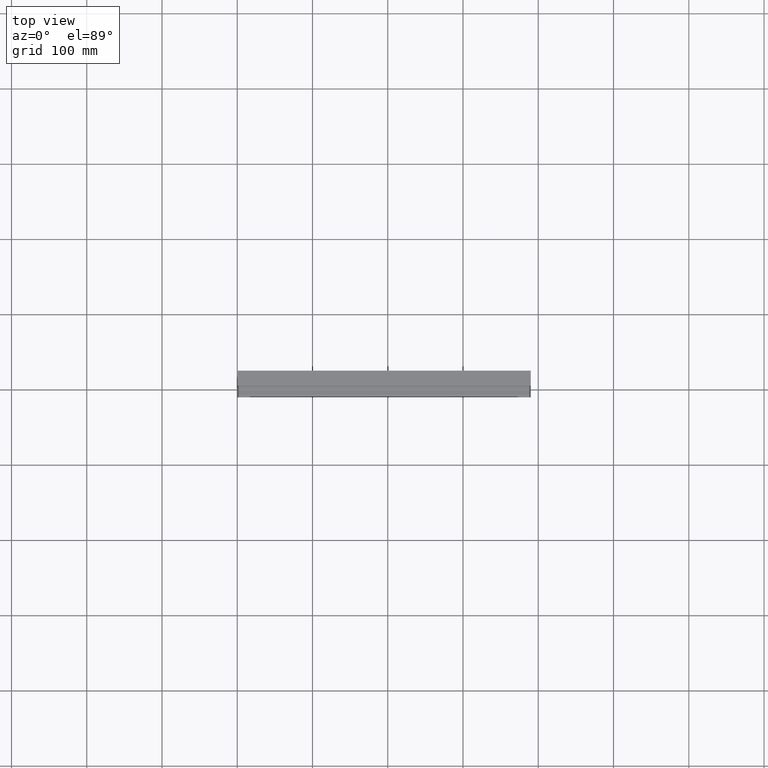
[diagram: clean part render]
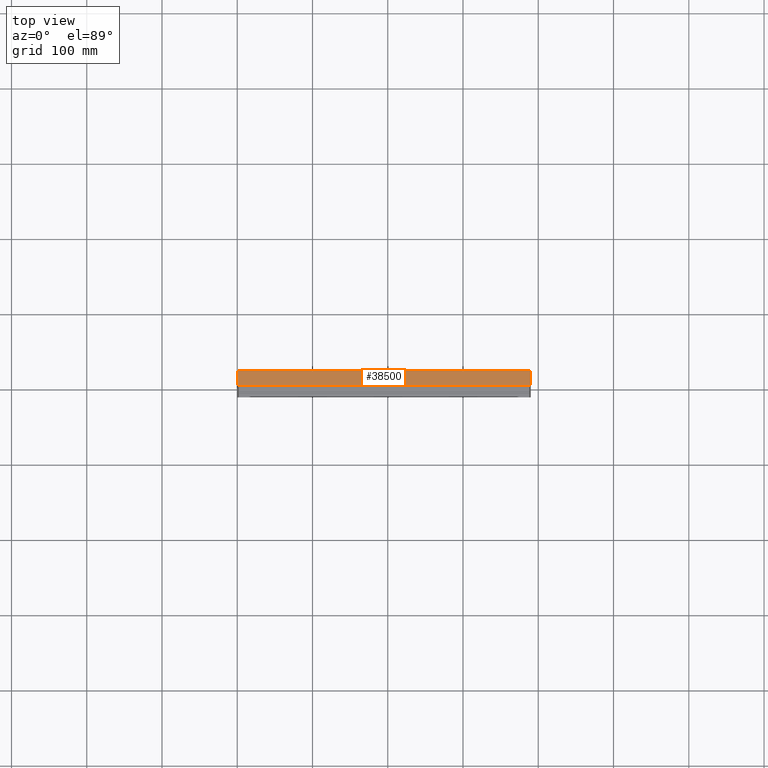
[diagram: same view with one face highlighted and labeled with its STEP entity id]
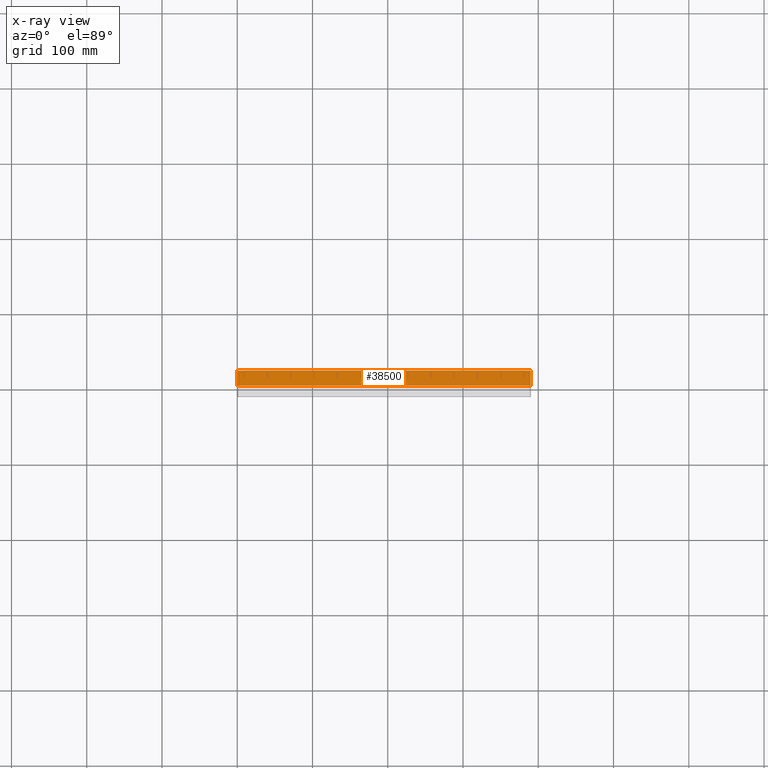
[diagram: x-ray of the same camera — body ghosted, the highlighted face saturated]
A machine part, top view. The second image highlights one B-rep face of the part: STEP entity #38500.
The next image is the same camera in x-ray: the body ghosted, the highlighted face saturated — about 0% of this face is hidden behind the body in this view.
In plain terms, the highlighted planar face has unit normal (0, 0, -1).
Its self-contained STEP definition (entity closure, byte-faithful):
#1150 = PLANE ( 'NONE',  #37576 ) ;
#1898 = CARTESIAN_POINT ( 'NONE',  ( -1.020538999289461500E-015, 3.333333333333336600, 0.0000000000000000000 ) ) ;
#3322 = ORIENTED_EDGE ( 'NONE', *, *, #40417, .F. ) ;
#5218 = CARTESIAN_POINT ( 'NONE',  ( 390.0000000000001100, -10.00000000000000000, 5.551115123125782700E-014 ) ) ;
#6524 = CARTESIAN_POINT ( 'NONE',  ( 390.0000000000001100, 10.00000000000000200, 2.775557561562891400E-014 ) ) ;
#7022 = DIRECTION ( 'NONE',  ( -3.061616997868383100E-016, -1.000000000000000000, -3.061616997868383100E-016 ) ) ;
#7394 = ORIENTED_EDGE ( 'NONE', *, *, #10578, .F. ) ;
#9116 = DIRECTION ( 'NONE',  ( -1.000000000000000000, 0.0000000000000000000, -6.800429056755966000E-017 ) ) ;
#10578 = EDGE_CURVE ( 'NONE', #42265, #51312, #27022, .T. ) ;
#13946 = DIRECTION ( 'NONE',  ( 6.800429056755966000E-017, 3.061616997868383600E-016, -1.000000000000000000 ) ) ;
#18314 = CARTESIAN_POINT ( 'NONE',  ( 5.551115123125767600E-014, 10.00000000000000200, -2.652167332134815600E-014 ) ) ;
#18609 = CARTESIAN_POINT ( 'NONE',  ( 5.704195973019201600E-014, -10.00000000000000000, -1.665334536937734800E-013 ) ) ;
#18947 = VECTOR ( 'NONE', #46942, 1000.000000000000000 ) ;
#21177 = ORIENTED_EDGE ( 'NONE', *, *, #30577, .T. ) ;
#26037 = CARTESIAN_POINT ( 'NONE',  ( 390.0000000000001100, -10.00000000000000000, 5.551115123125782700E-014 ) ) ;
#26241 = LINE ( 'NONE', #32549, #40949 ) ;
#26349 = ORIENTED_EDGE ( 'NONE', *, *, #36932, .F. ) ;
#27022 = LINE ( 'NONE', #26037, #18947 ) ;
#27633 = B_SPLINE_CURVE_WITH_KNOTS ( 'NONE', 3,
 ( #18609, #48733, #1898, #39391 ),
 .UNSPECIFIED., .F., .F.,
 ( 4, 4 ),
 ( 0.0000000000000000000, 1.000000000000000000 ),
 .UNSPECIFIED. ) ;
#28499 = CARTESIAN_POINT ( 'NONE',  ( 5.704195973019201600E-014, -10.00000000000000000, -1.665334536937734800E-013 ) ) ;
#30577 = EDGE_CURVE ( 'NONE', #52372, #31249, #41801, .T. ) ;
#31249 = VERTEX_POINT ( 'NONE', #18314 ) ;
#32549 = CARTESIAN_POINT ( 'NONE',  ( 390.0000000000001100, 9.999999999999621600, 0.0000000000000000000 ) ) ;
#36932 = EDGE_CURVE ( 'NONE', #52372, #42265, #26241, .T. ) ;
#37576 = AXIS2_PLACEMENT_3D ( 'NONE', #39559, #13946, #43844 ) ;
#38500 = ADVANCED_FACE ( 'NONE', ( #45428 ), #1150, .F. ) ;
#39170 = CARTESIAN_POINT ( 'NONE',  ( 390.0000000000001100, 10.00000000000000200, 2.775557561562891400E-014 ) ) ;
#39391 = CARTESIAN_POINT ( 'NONE',  ( 5.551115123125767600E-014, 10.00000000000000200, -2.652167332134815600E-014 ) ) ;
#39559 = CARTESIAN_POINT ( 'NONE',  ( 390.0000000000001100, 9.999999999999621600, 0.0000000000000000000 ) ) ;
#40417 = EDGE_CURVE ( 'NONE', #51312, #31249, #27633, .T. ) ;
#40949 = VECTOR ( 'NONE', #7022, 1000.000000000000000 ) ;
#41801 = LINE ( 'NONE', #39170, #50486 ) ;
#42265 = VERTEX_POINT ( 'NONE', #5218 ) ;
#43844 = DIRECTION ( 'NONE',  ( 0.0000000000000000000, 1.000000000000000000, 3.061616997868383600E-016 ) ) ;
#45428 = FACE_OUTER_BOUND ( 'NONE', #48348, .T. ) ;
#46942 = DIRECTION ( 'NONE',  ( -1.000000000000000000, 0.0000000000000000000, -6.800429056755966000E-017 ) ) ;
#48348 = EDGE_LOOP ( 'NONE', ( #21177, #3322, #7394, #26349 ) ) ;
#48733 = CARTESIAN_POINT ( 'NONE',  ( 1.020538999289460400E-015, -3.333333333333331300, 0.0000000000000000000 ) ) ;
#50486 = VECTOR ( 'NONE', #9116, 1000.000000000000000 ) ;
#51312 = VERTEX_POINT ( 'NONE', #28499 ) ;
#52372 = VERTEX_POINT ( 'NONE', #6524 ) ;